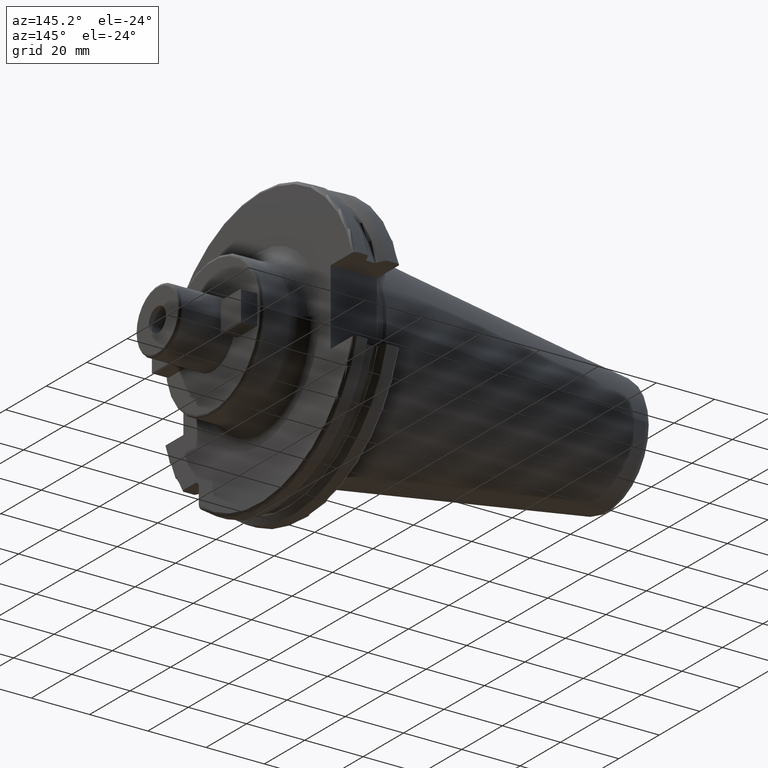
[diagram: clean part render]
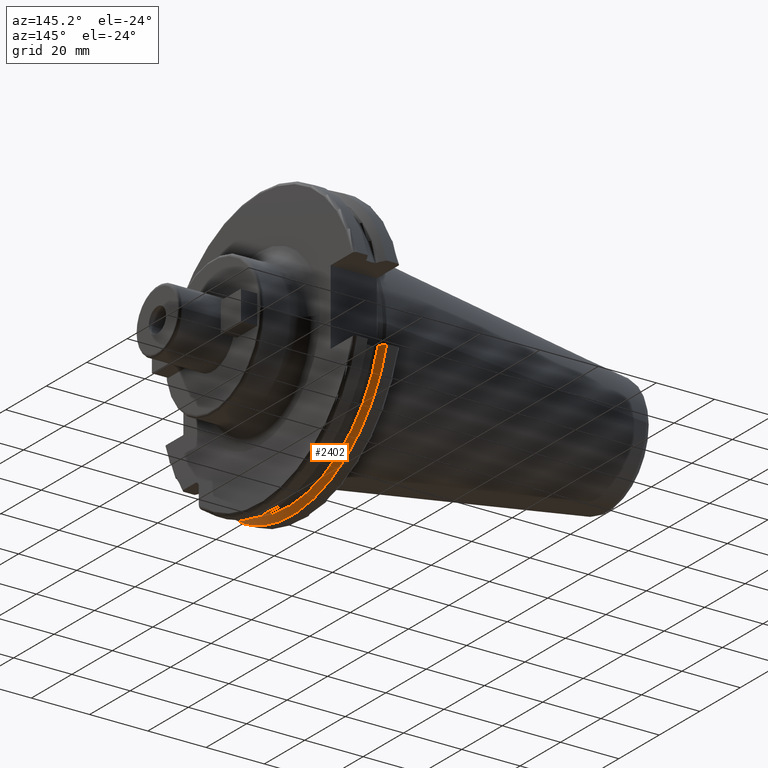
[diagram: same view with one face highlighted and labeled with its STEP entity id]
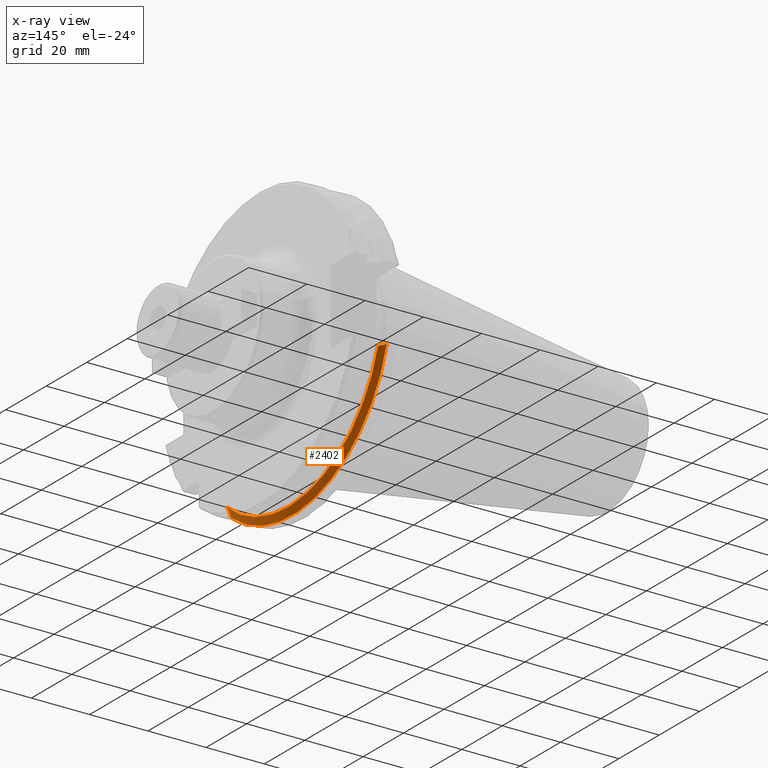
[diagram: x-ray of the same camera — body ghosted, the highlighted face saturated]
A machine part, auxiliary view. The second image highlights one B-rep face of the part: STEP entity #2402.
The next image is the same camera in x-ray: the body ghosted, the highlighted face saturated — about 0% of this face is hidden behind the body in this view.
In plain terms, the highlighted conical surface has half-angle 60 deg.
Its self-contained STEP definition (entity closure, byte-faithful):
#311=CARTESIAN_POINT('',(9.2625E0,0.E0,0.E0));
#312=DIRECTION('',(-1.E0,0.E0,0.E0));
#313=DIRECTION('',(0.E0,9.606411165078E-1,-2.777924499957E-1));
#314=AXIS2_PLACEMENT_3D('',#311,#312,#313);
#695=CARTESIAN_POINT('',(9.2625E0,4.460981716077E1,-1.29E1));
#696=CARTESIAN_POINT('',(9.118283773553E0,4.486984125009E1,-1.29E1));
#697=CARTESIAN_POINT('',(8.827633549554E0,4.539353719098E1,-1.29E1));
#698=CARTESIAN_POINT('',(8.385043355543E0,4.618996220278E1,-1.29E1));
#699=CARTESIAN_POINT('',(8.085504386120E0,4.672829507383E1,-1.29E1));
#700=CARTESIAN_POINT('',(7.934621614173E0,4.699929686974E1,-1.29E1));
#702=CARTESIAN_POINT('',(9.2625E0,-2.985E1,-3.557278857662E1));
#703=CARTESIAN_POINT('',(9.122796459387E0,-2.985E1,-3.588866659244E1));
#704=CARTESIAN_POINT('',(8.838204990616E0,-2.985E1,-3.652866450573E1));
#705=CARTESIAN_POINT('',(8.396067032347E0,-2.985E1,-3.751242476101E1));
#706=CARTESIAN_POINT('',(8.090246731407E0,-2.985E1,-3.818590359837E1));
#707=CARTESIAN_POINT('',(7.934621614173E0,-2.985E1,-3.852689198793E1));
#731=CARTESIAN_POINT('',(7.934621614173E0,0.E0,0.E0));
#732=DIRECTION('',(1.E0,0.E0,0.E0));
#733=DIRECTION('',(0.E0,-6.124647345473E-1,-7.904979120376E-1));
#734=AXIS2_PLACEMENT_3D('',#731,#732,#733);
#1416=CARTESIAN_POINT('',(9.2625E0,4.460981716077E1,-1.29E1));
#1418=VERTEX_POINT('',#1416);
#1460=VERTEX_POINT('',#700);
#1515=CARTESIAN_POINT('',(9.2625E0,-2.985E1,-3.557278857662E1));
#1516=VERTEX_POINT('',#1515);
#1559=VERTEX_POINT('',#707);
#2390=CARTESIAN_POINT('',(8.598560807087E0,0.E0,0.E0));
#2391=DIRECTION('',(-1.E0,0.E0,0.E0));
#2392=DIRECTION('',(0.E0,1.E0,0.E0));
#2393=AXIS2_PLACEMENT_3D('',#2390,#2391,#2392);
#2394=CONICAL_SURFACE('',#2393,4.758752358474E1,6.E1);
#2395=ORIENTED_EDGE('',*,*,#2011,.T.);
#2397=ORIENTED_EDGE('',*,*,#2396,.F.);
#2398=ORIENTED_EDGE('',*,*,#1865,.F.);
#2399=ORIENTED_EDGE('',*,*,#2038,.F.);
#2400=EDGE_LOOP('',(#2395,#2397,#2398,#2399));
#2401=FACE_OUTER_BOUND('',#2400,.F.);
#2402=ADVANCED_FACE('',(#2401),#2394,.T.);
#315=CIRCLE('',#314,4.643754716948E1);
#701=B_SPLINE_CURVE_WITH_KNOTS('',3,(#695,#696,#697,#698,#699,#700),
.UNSPECIFIED.,.F.,.F.,(4,1,1,4),(0.E0,3.333333333333E-1,6.666666666667E-1,1.E0),
.UNSPECIFIED.);
#708=B_SPLINE_CURVE_WITH_KNOTS('',3,(#702,#703,#704,#705,#706,#707),
.UNSPECIFIED.,.F.,.F.,(4,1,1,4),(0.E0,3.333333333333E-1,6.666666666667E-1,1.E0),
.UNSPECIFIED.);
#735=CIRCLE('',#734,4.87375E1);
#1865=EDGE_CURVE('',#1516,#1559,#708,.T.);
#2011=EDGE_CURVE('',#1418,#1460,#701,.T.);
#2038=EDGE_CURVE('',#1418,#1516,#315,.T.);
#2396=EDGE_CURVE('',#1559,#1460,#735,.T.);